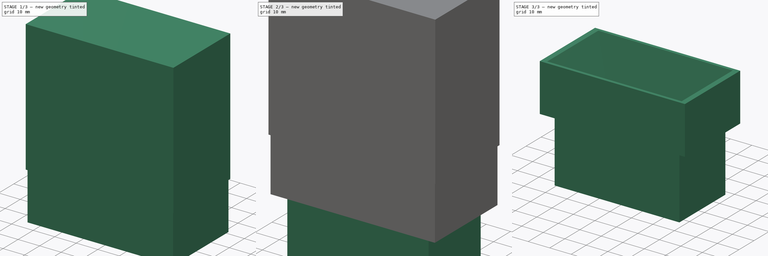
[diagram: build sequence overview — one tinted view per stage of 3, left to right]
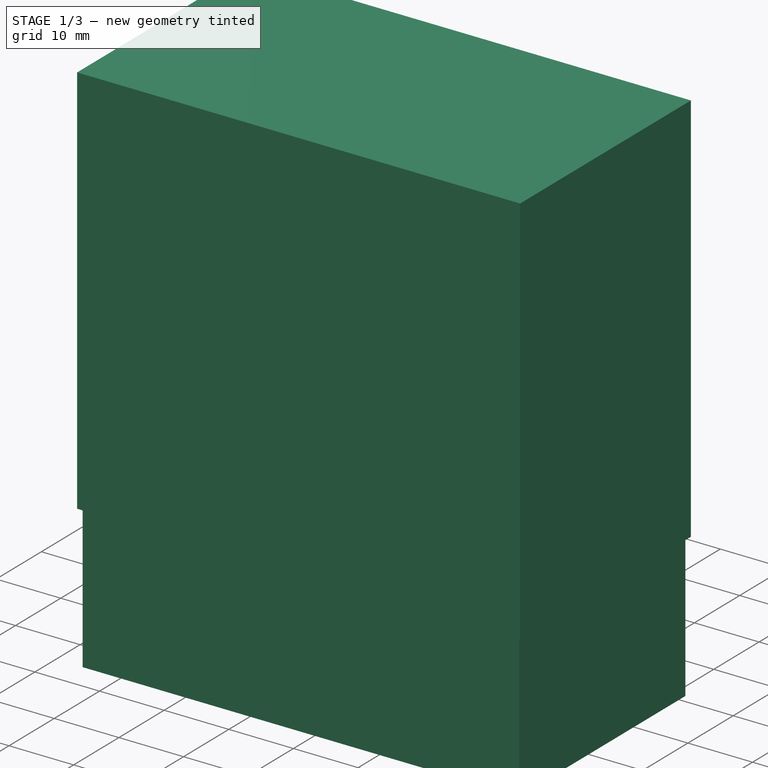
[diagram: stage 1 of 3 — iso view after this stage's code; geometry added in this stage tinted green]
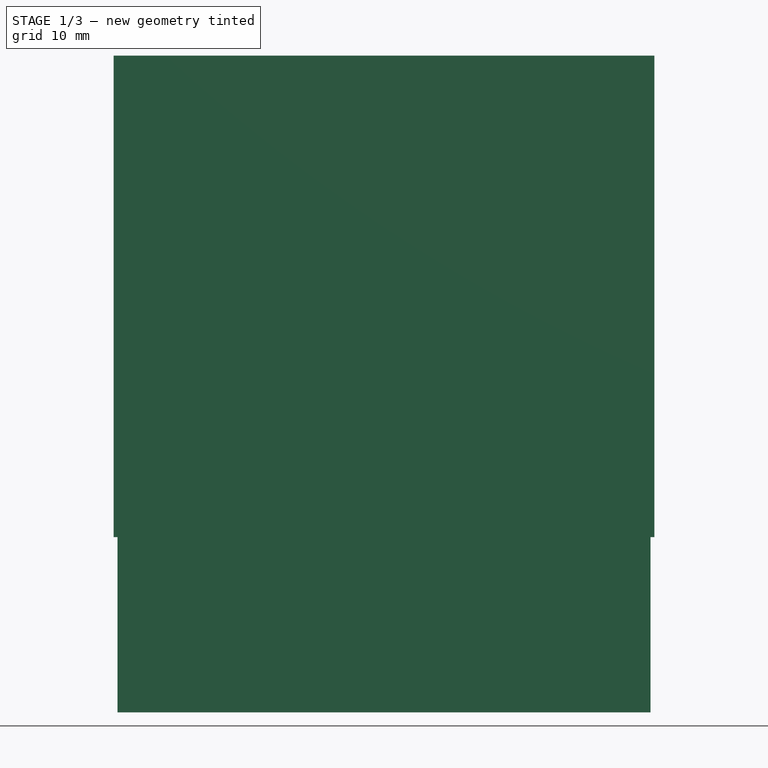
[diagram: stage 1 of 3 — front view after this stage's code; geometry added in this stage tinted green]
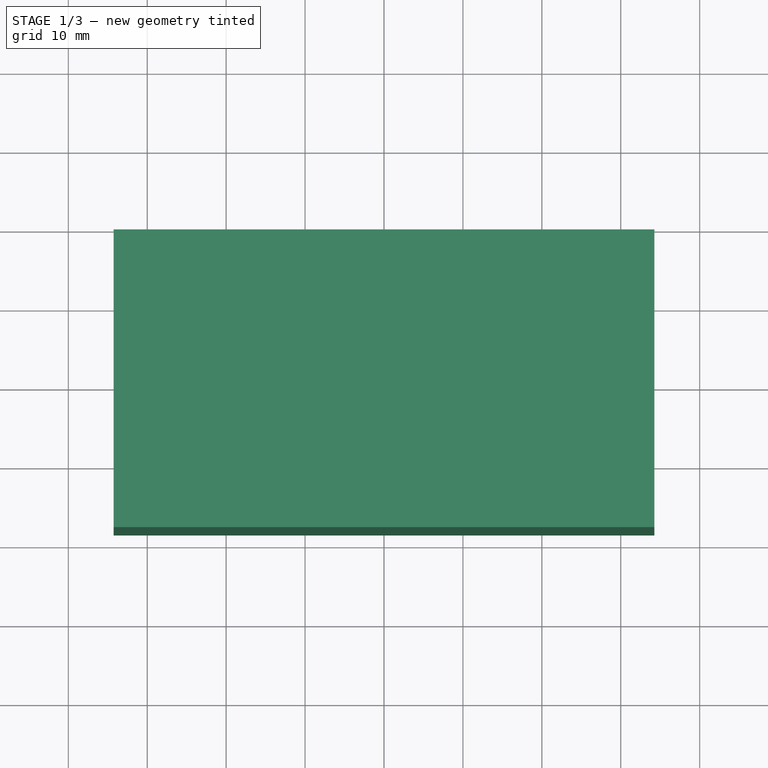
[diagram: stage 1 of 3 — top view after this stage's code; geometry added in this stage tinted green]
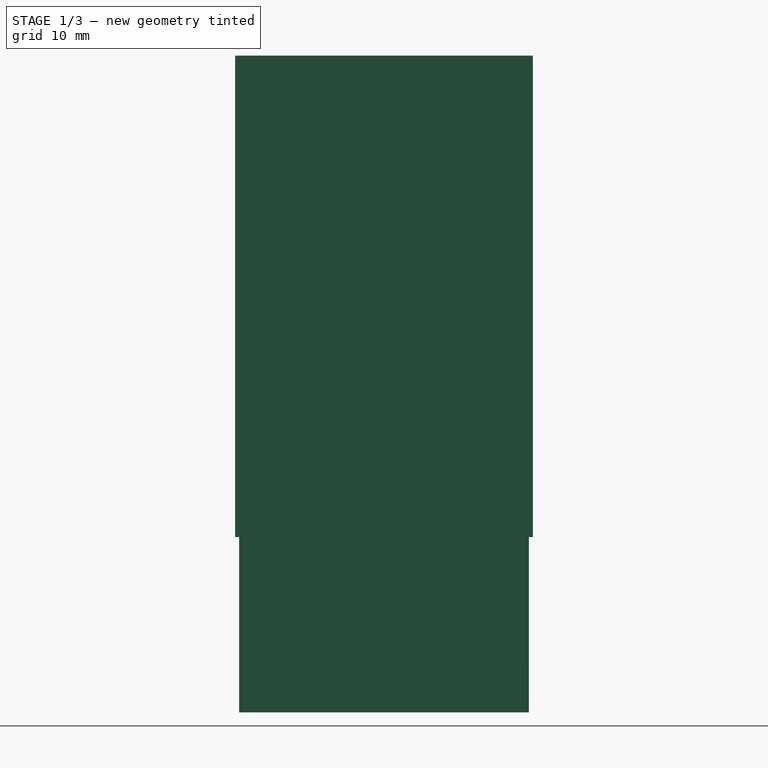
[diagram: stage 1 of 3 — right view after this stage's code; geometry added in this stage tinted green]
FCSTD DOCUMENT  (FreeCAD 0.21R33771 (Git))
Label: rastrub
License: All rights reserved
LicenseURL: http://en.wikipedia.org/wiki/All_rights_reserved
objects: Sketcher::SketchObject×3, PartDesign::Pad×2, PartDesign::SubtractiveLoft×2, PartDesign::Body×1, App::Link×1, Part::Compound×1, Part::Box×1, Part::Cut×1
note: 15 computed .brp shape members not serialized (recipe doc carries the construction recipe); baked Part::Feature solids carry a one-line shape summary decoded from their .brp

FEATURE [Sketcher::SketchObject] Sketch
  FullyConstrained = false
  MapMode = 5
  Support = -> [XY_Plane]
  sketch-geometry (5):
    g0: LineSegment StartX=-33.7601 StartY=18.3602 StartZ=0 EndX=-33.7601 EndY=-18.3602 EndZ=0
    g1: LineSegment StartX=-33.7601 StartY=-18.3602 StartZ=0 EndX=33.7601 EndY=-18.3602 EndZ=0
    g2: LineSegment StartX=33.7601 StartY=-18.3602 StartZ=0 EndX=33.7601 EndY=18.3602 EndZ=0
    g3: LineSegment StartX=33.7601 StartY=18.3602 StartZ=0 EndX=-33.7601 EndY=18.3602 EndZ=0
    g4: GeomPoint X=0 Y=0 Z=0
  constraints (10):
    c: Coincident(g0,g1)
    c: Coincident(g1,g2)
    c: Coincident(g2,g3)
    c: Coincident(g3,g0)
    c: Horizontal(g1)
    c: Horizontal(g3)
    c: Vertical(g0)
    c: Vertical(g2)
    c: Symmetric(g1,g0,g4)
    c: Coincident(g4,g-1)
FEATURE [Sketcher::SketchObject] Sketch001
  FullyConstrained = false
  MapMode = 5
  Support = -> [XY_Plane]
  sketch-geometry (5):
    g0: LineSegment StartX=-24.1909 StartY=12.9706 StartZ=0 EndX=-24.1909 EndY=-12.9706 EndZ=0
    g1: LineSegment StartX=-24.1909 StartY=-12.9706 StartZ=0 EndX=24.1909 EndY=-12.9706 EndZ=0
    g2: LineSegment StartX=24.1909 StartY=-12.9706 StartZ=0 EndX=24.1909 EndY=12.9706 EndZ=0
    g3: LineSegment StartX=24.1909 StartY=12.9706 StartZ=0 EndX=-24.1909 EndY=12.9706 EndZ=0
    g4: GeomPoint X=0 Y=0 Z=0
  constraints (10):
    c: Coincident(g0,g1)
    c: Coincident(g1,g2)
    c: Coincident(g2,g3)
    c: Coincident(g3,g0)
    c: Horizontal(g1)
    c: Horizontal(g3)
    c: Vertical(g0)
    c: Vertical(g2)
    c: Symmetric(g1,g0,g4)
    c: Coincident(g4,g-1)
FEATURE [PartDesign::Pad] Pad
  Direction = (0,0,1)
  Length = 30
  Length2 = 10
  Profile = -> Sketch
  ReferenceAxis = -> Sketch [N_Axis]
  Refine = true
  Type = 0
FEATURE [Part::Box] SectionCutBoxZ
  AttacherType = Attacher::AttachEngine3D
  Height = 61
  Length = 68.5201
  Placement = pos=(-34.2601,-18.8602,22.2) rot=(0,0,1;0rad)
  Width = 37.7204
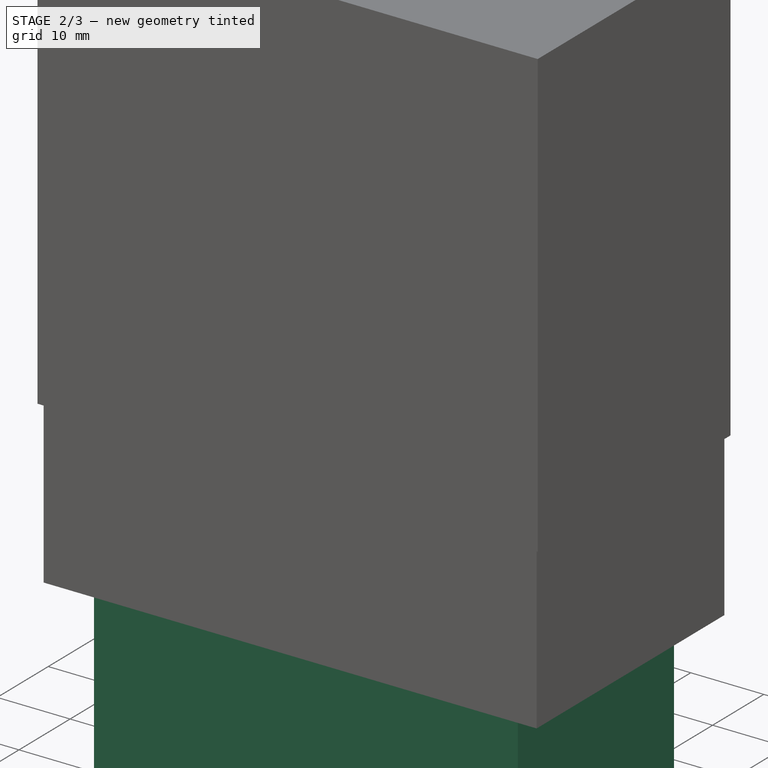
[diagram: stage 2 of 3 — iso view after this stage's code; geometry added in this stage tinted green]
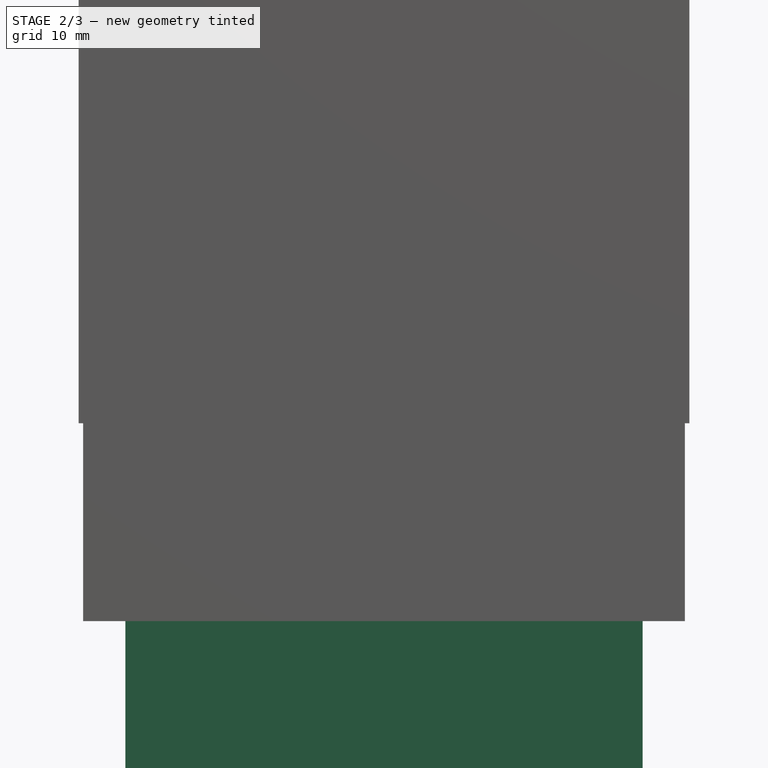
[diagram: stage 2 of 3 — front view after this stage's code; geometry added in this stage tinted green]
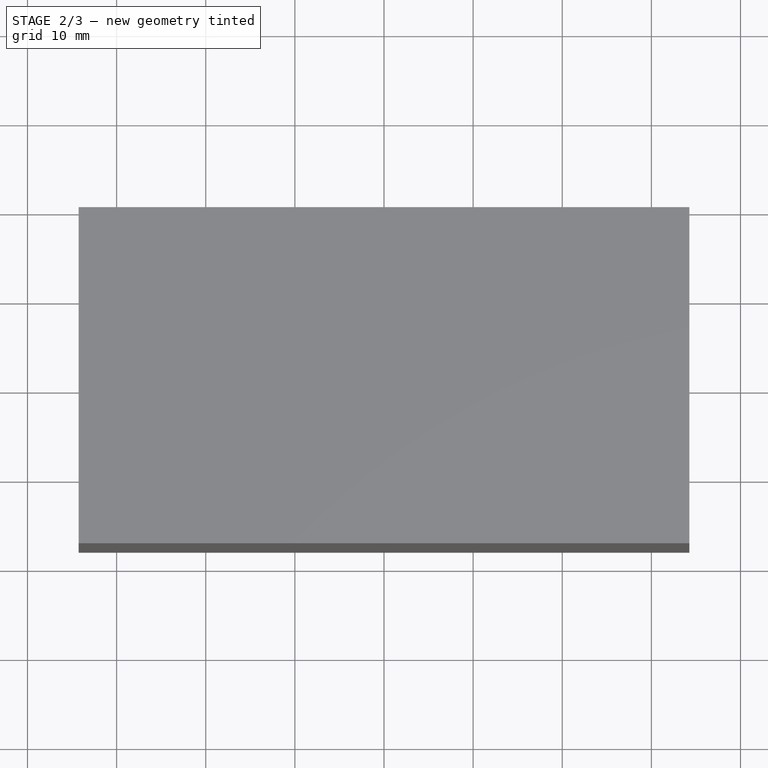
[diagram: stage 2 of 3 — top view after this stage's code; geometry added in this stage tinted green]
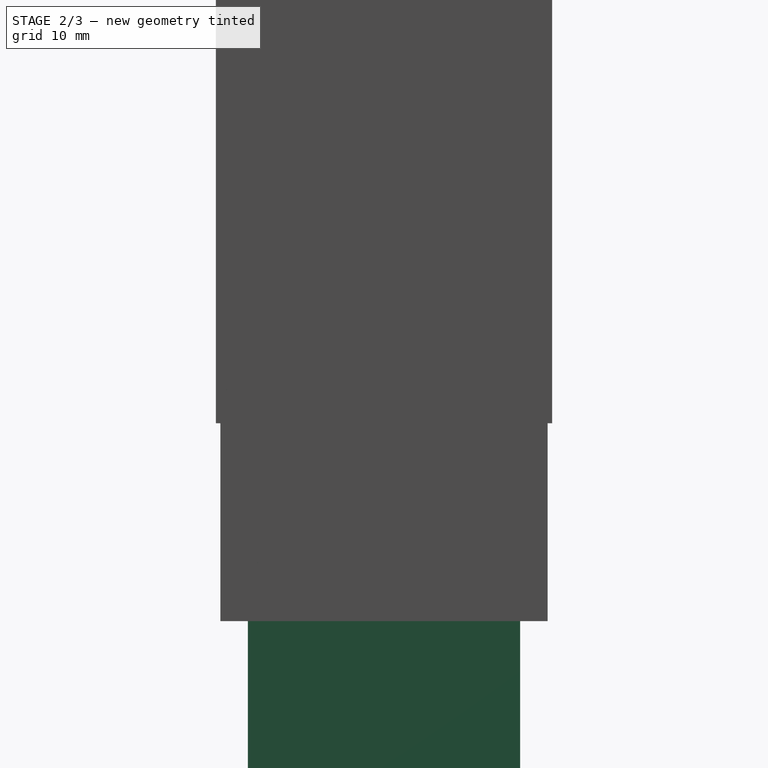
[diagram: stage 2 of 3 — right view after this stage's code; geometry added in this stage tinted green]
FEATURE [PartDesign::SubtractiveLoft] SubtractiveLoft
  BaseFeature = -> Pad
  Closed = false
  Profile = -> Sketch001
  Refine = true
  Ruled = true
  Sections = -> [Pad]
FEATURE [Sketcher::SketchObject] Sketch002
  FullyConstrained = false
  MapMode = 5
  Placement = pos=(0,0,0) rot=(1,0,0;3.14159rad)
  Support = -> [SubtractiveLoft]
  sketch-geometry (5):
    g0: LineSegment StartX=-29.0257 StartY=15.2716 StartZ=0 EndX=-29.0257 EndY=-15.2716 EndZ=0
    g1: LineSegment StartX=-29.0257 StartY=-15.2716 StartZ=0 EndX=29.0257 EndY=-15.2716 EndZ=0
    g2: LineSegment StartX=29.0257 StartY=-15.2716 StartZ=0 EndX=29.0257 EndY=15.2716 EndZ=0
    g3: LineSegment StartX=29.0257 StartY=15.2716 StartZ=0 EndX=-29.0257 EndY=15.2716 EndZ=0
    g4: GeomPoint X=0 Y=0 Z=0
  constraints (10):
    c: Coincident(g0,g1)
    c: Coincident(g1,g2)
    c: Coincident(g2,g3)
    c: Coincident(g3,g0)
    c: Horizontal(g1)
    c: Horizontal(g3)
    c: Vertical(g0)
    c: Vertical(g2)
    c: Symmetric(g1,g0,g4)
    c: Coincident(g4,g-1)
FEATURE [PartDesign::Pad] Pad001
  BaseFeature = -> SubtractiveLoft
  Direction = (0,0,-1)
  Length = 30
  Length2 = 10
  Profile = -> Sketch002
  ReferenceAxis = -> Sketch002 [N_Axis]
  Refine = true
  Type = 0
FEATURE [PartDesign::SubtractiveLoft] SubtractiveLoft001
  BaseFeature = -> Pad001
  Closed = false
  Profile = -> Pad001 [Face13]
  Refine = true
  Ruled = false
  Sections = -> [Pad001]
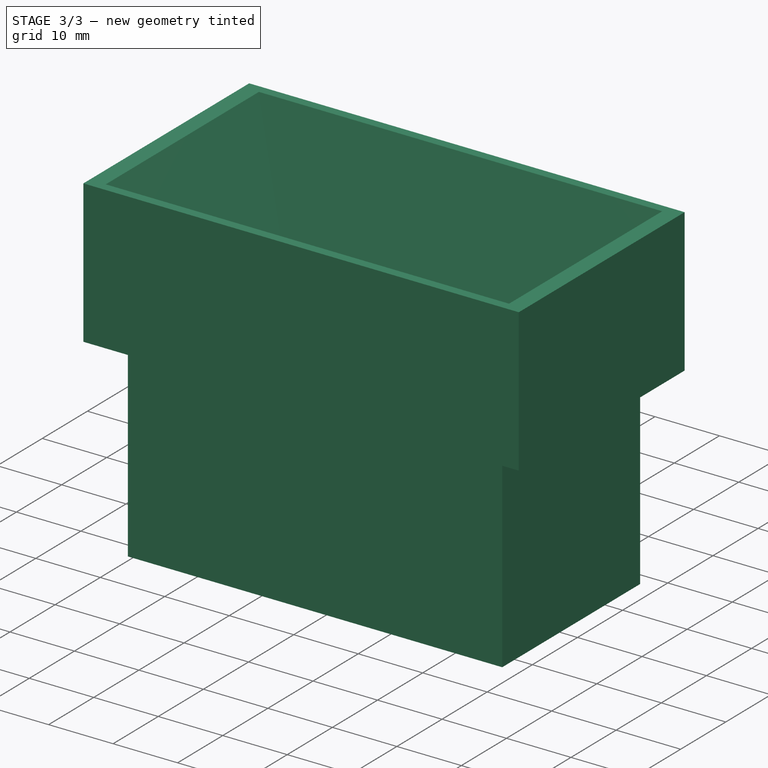
[diagram: stage 3 of 3 — iso view after this stage's code; geometry added in this stage tinted green]
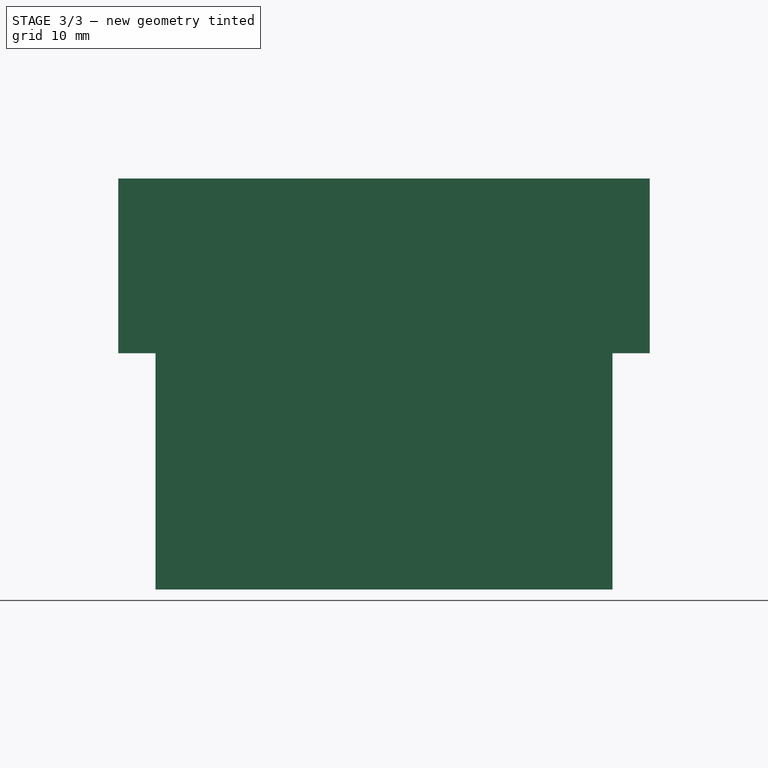
[diagram: stage 3 of 3 — front view after this stage's code; geometry added in this stage tinted green]
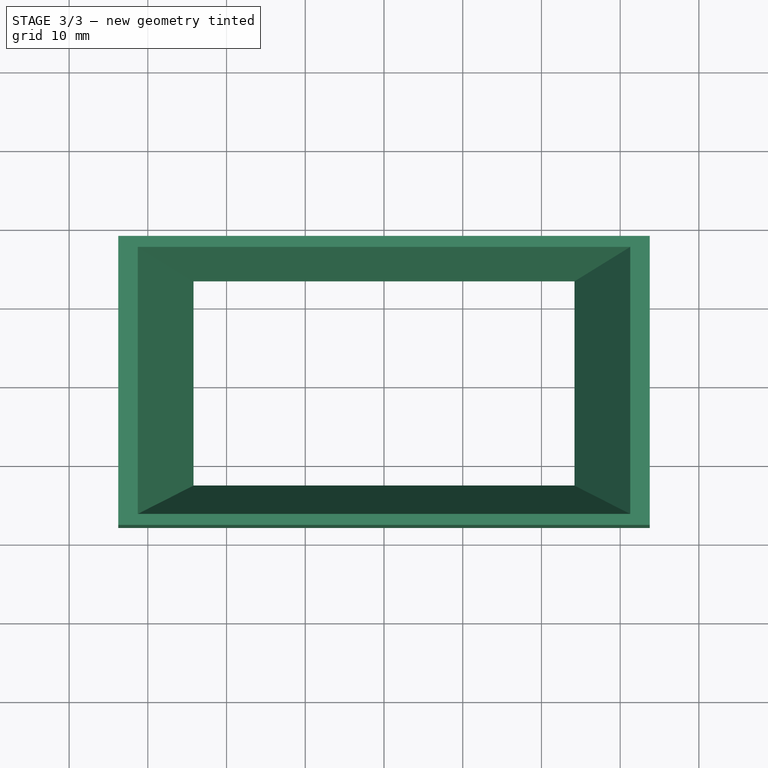
[diagram: stage 3 of 3 — top view after this stage's code; geometry added in this stage tinted green]
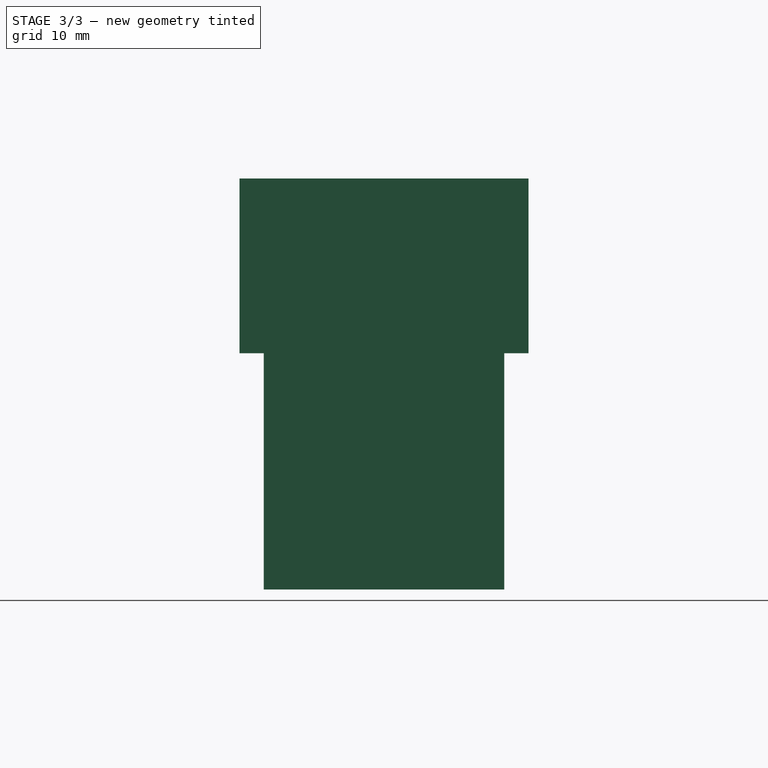
[diagram: stage 3 of 3 — right view after this stage's code; geometry added in this stage tinted green]
FEATURE [PartDesign::Body] Body
  Group = -> [Sketch,Sketch001,Pad,SubtractiveLoft,Sketch002,Pad001,SubtractiveLoft001]
  Origin = -> Origin
  Tip = -> SubtractiveLoft001
FEATURE [App::Link] Body_CutLink
  LinkTransform = true
  LinkedObject = -> Body
FEATURE [Part::Compound] SectionCutCompound
  Links = -> [Body_CutLink]
FEATURE [Part::Cut] SectionCutZ
  Base = -> SectionCutCompound
  Refine = true
  Tool = -> SectionCutBoxZ
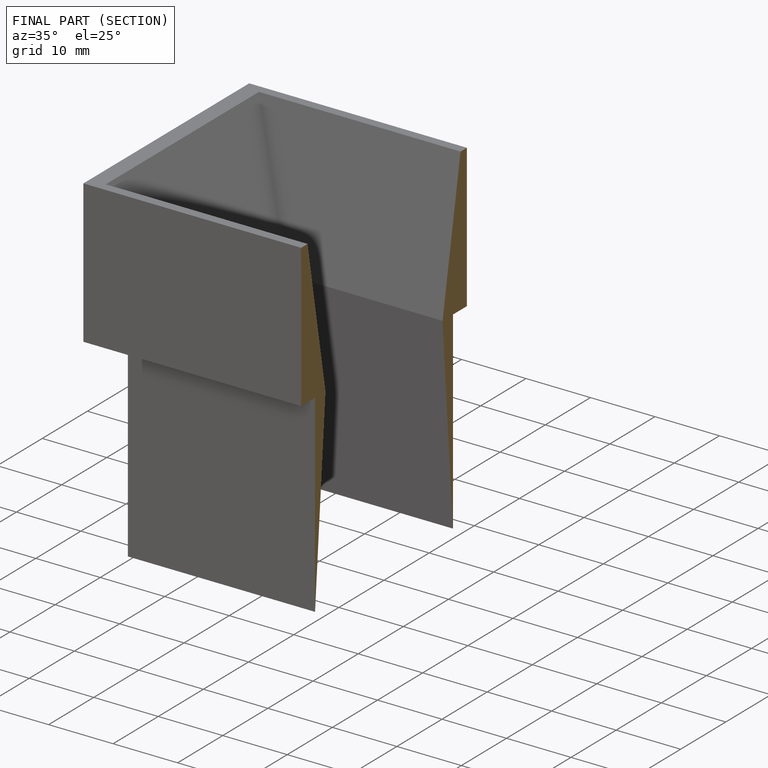
[diagram: finished part — half-section view (interior)]
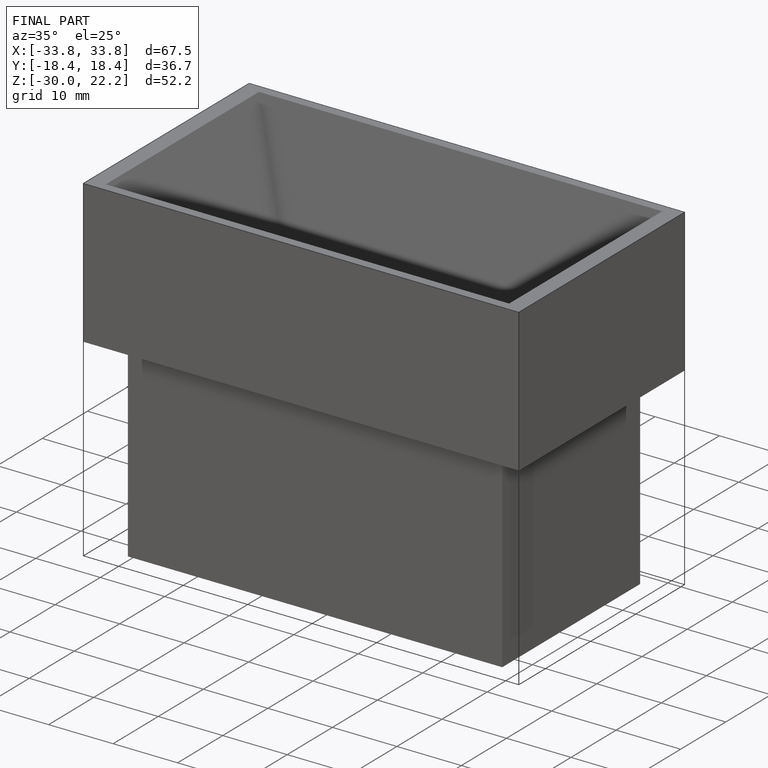
[diagram: finished part — iso view with bounding-box wireframe]
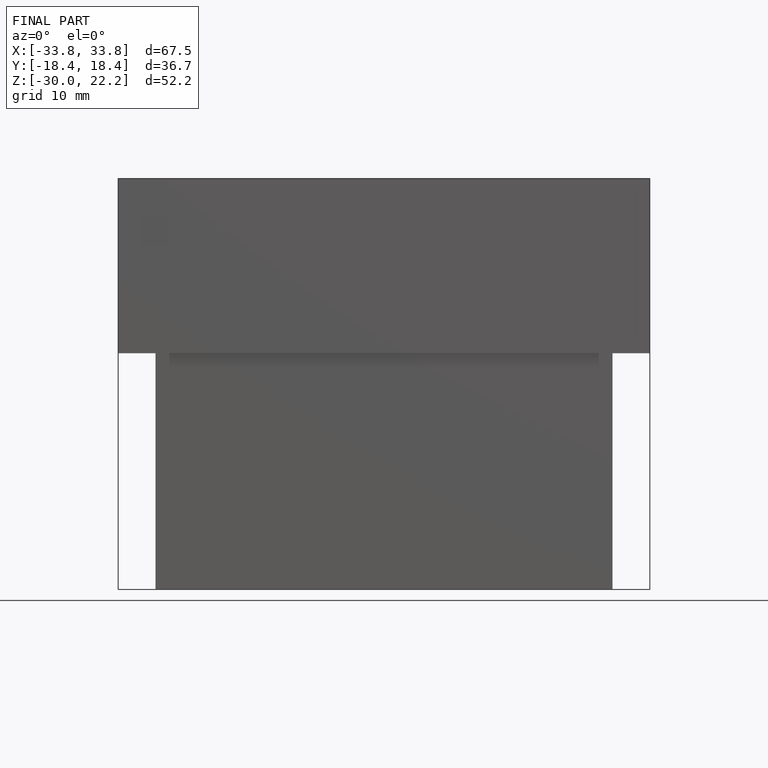
[diagram: finished part — front view with bounding-box wireframe]
